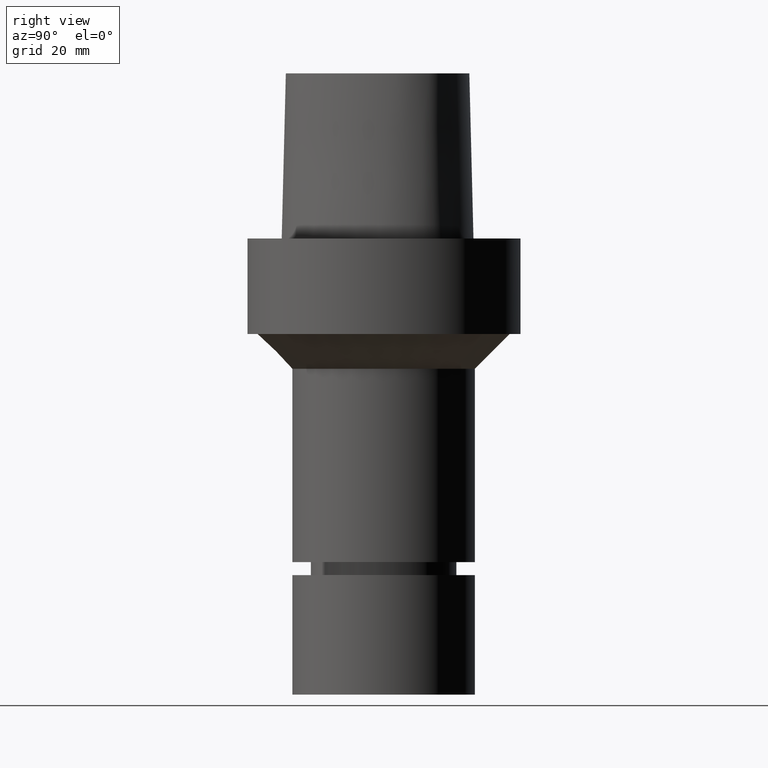
[diagram: clean part render]
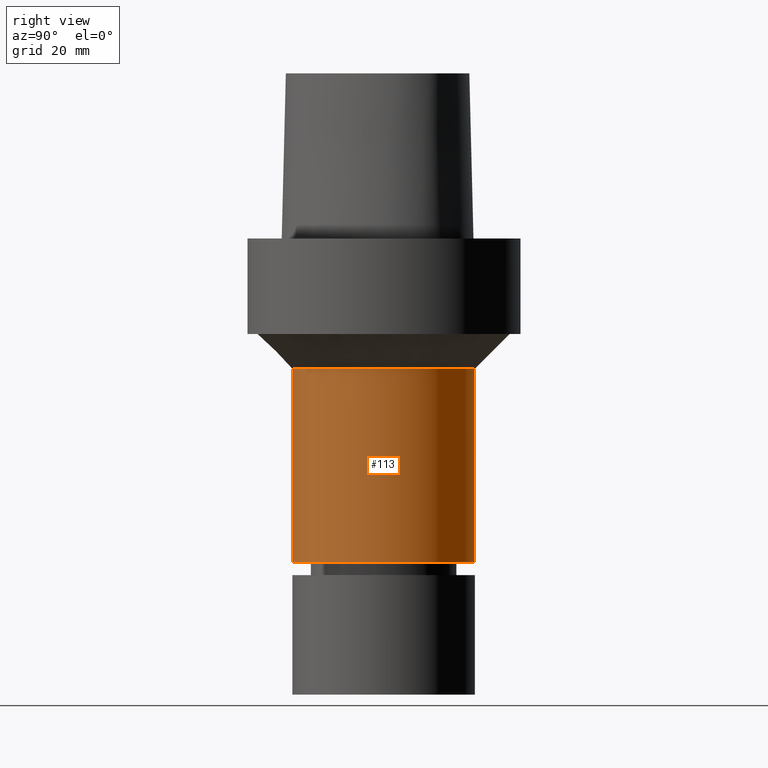
[diagram: same view with one face highlighted and labeled with its STEP entity id]
A machine part, right view. The second image highlights one B-rep face of the part: STEP entity #113.
In plain terms, the highlighted cylindrical surface (bore or boss wall) has radius 21 mm, axis along (0, 0, -1).
Its self-contained STEP definition (entity closure, byte-faithful):
#110=EDGE_CURVE('Unnamed[1]',#248,#248,#249,.T.);
#113=ADVANCED_FACE('Unnamed[1]',(#252,#253),#254,.T.);
#136=EDGE_CURVE('Unnamed[1]',#288,#288,#289,.T.);
#248=VERTEX_POINT('',#522);
#249=CIRCLE('',#523,21.0000000000001);
#252=FACE_BOUND('',#527,.T.);
#253=FACE_BOUND('',#528,.T.);
#254=CYLINDRICAL_SURFACE('',#529,21.0000000000002);
#288=VERTEX_POINT('',#643);
#289=CIRCLE('',#644,21.0000000000002);
#522=CARTESIAN_POINT('',(4.56180932682389E-015,21.0000000000001,-74.4999999999999));
#523=AXIS2_PLACEMENT_3D('',#790,#791,#792);
#527=EDGE_LOOP('',(#794));
#528=EDGE_LOOP('',(#795));
#529=AXIS2_PLACEMENT_3D('',#796,#797,#798);
#643=CARTESIAN_POINT('',(1.83697019872106E-015,21.0000000000002,-30.0000000000005));
#644=AXIS2_PLACEMENT_3D('',#836,#837,#838);
#790=CARTESIAN_POINT('',(4.56180932682389E-015,9.12361865364777E-015,-74.4999999999999));
#791=DIRECTION('',(6.12323399573677E-017,1.22464679914735E-016,-1.0));
#792=DIRECTION('',(-1.23259516440783E-032,1.0,1.22464679914735E-016));
#794=ORIENTED_EDGE('',*,*,#110,.F.);
#795=ORIENTED_EDGE('',*,*,#136,.T.);
#796=CARTESIAN_POINT('',(3.19938976277247E-015,6.39877952554495E-015,-52.2500000000002));
#797=DIRECTION('',(6.12323399573677E-017,1.22464679914735E-016,-1.0));
#798=DIRECTION('',(-1.23259516440783E-032,1.0,1.22464679914735E-016));
#836=CARTESIAN_POINT('',(1.83697019872106E-015,3.67394039744212E-015,-30.0000000000005));
#837=DIRECTION('',(6.12323399573677E-017,1.22464679914735E-016,-1.0));
#838=DIRECTION('',(-1.23259516440783E-032,1.0,1.22464679914735E-016));